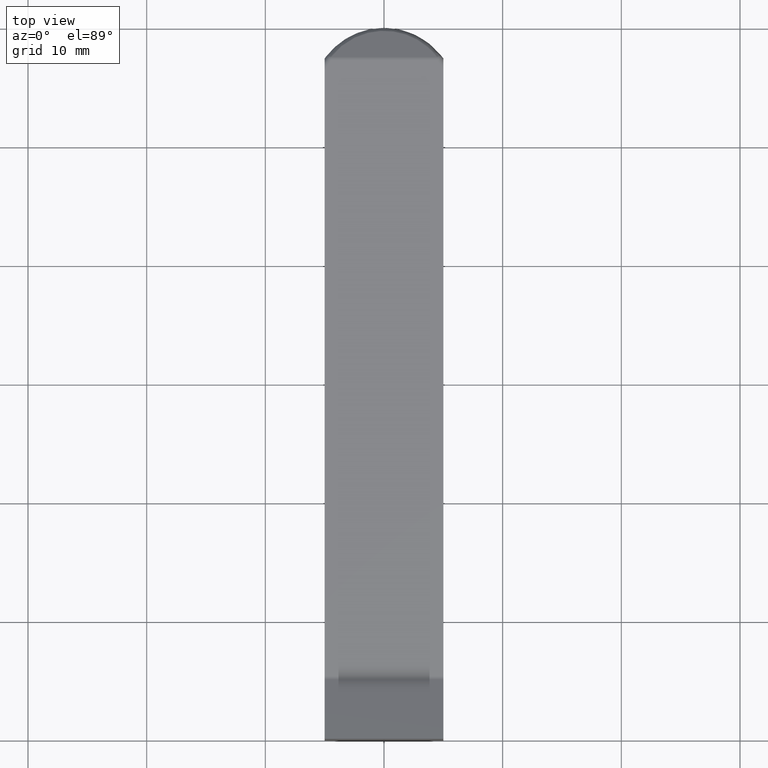
[diagram: clean part render]
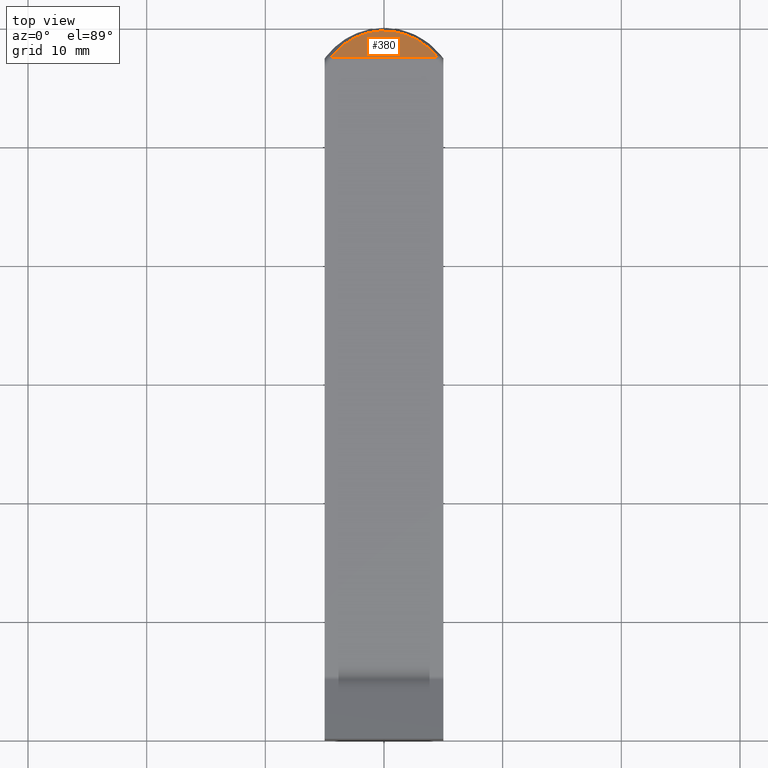
[diagram: same view with one face highlighted and labeled with its STEP entity id]
A machine part, top view. The second image highlights one B-rep face of the part: STEP entity #380.
In plain terms, the highlighted planar face has unit normal (0, 0.5, 0.866).
Its self-contained STEP definition (entity closure, byte-faithful):
#24=ELLIPSE('',#410,6.47820528636593,5.61029034892354);
#85=FACE_OUTER_BOUND('',#109,.T.);
#109=EDGE_LOOP('',(#346,#347));
#129=LINE('',#771,#151);
#151=VECTOR('',#560,10.);
#168=VERTEX_POINT('',#625);
#170=VERTEX_POINT('',#659);
#203=EDGE_CURVE('',#170,#168,#24,.T.);
#237=EDGE_CURVE('',#168,#170,#129,.T.);
#346=ORIENTED_EDGE('',*,*,#203,.F.);
#347=ORIENTED_EDGE('',*,*,#237,.F.);
#356=PLANE('',#450);
#380=ADVANCED_FACE('',(#85),#356,.T.);
#410=AXIS2_PLACEMENT_3D('',#661,#480,#481);
#450=AXIS2_PLACEMENT_3D('',#779,#573,#574);
#480=DIRECTION('center_axis',(0.,-0.5,-0.866025403784439));
#481=DIRECTION('ref_axis',(8.56890894582901E-17,0.866025403784439,-0.5));
#560=DIRECTION('',(-1.,0.,0.));
#573=DIRECTION('center_axis',(0.,0.5,0.866025403784439));
#574=DIRECTION('ref_axis',(0.,-0.866025403784439,0.5));
#625=CARTESIAN_POINT('',(4.47915788965429,37.5179491924311,1.93301270189222));
#659=CARTESIAN_POINT('',(-4.47915788965429,37.5179491924311,1.93301270189222));
#661=CARTESIAN_POINT('Origin',(0.,34.1397096510764,3.88344021048038));
#771=CARTESIAN_POINT('',(0.,37.5179491924311,1.93301270189222));
#779=CARTESIAN_POINT('Origin',(0.,40.,0.5));